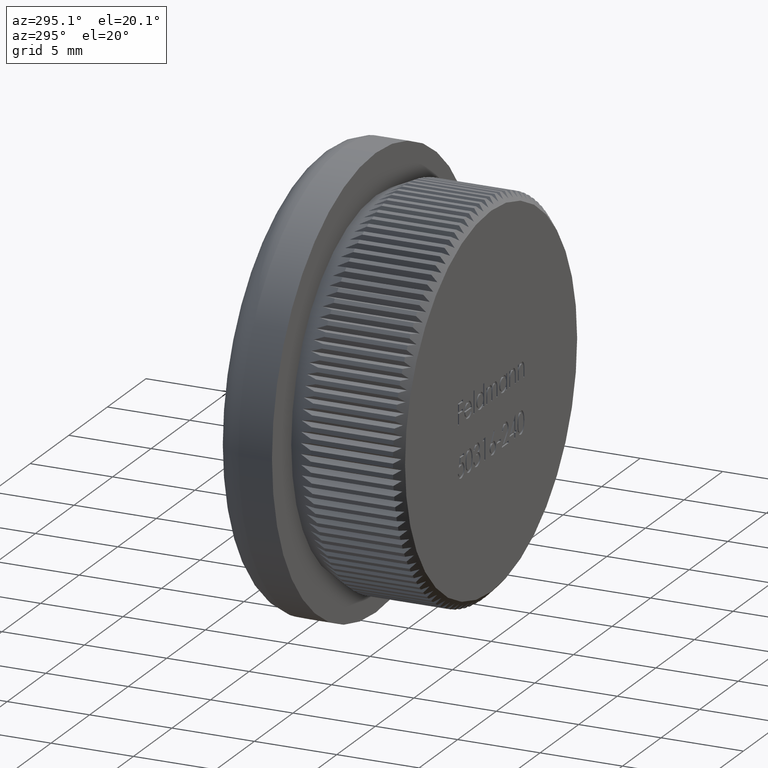
[diagram: clean part render]
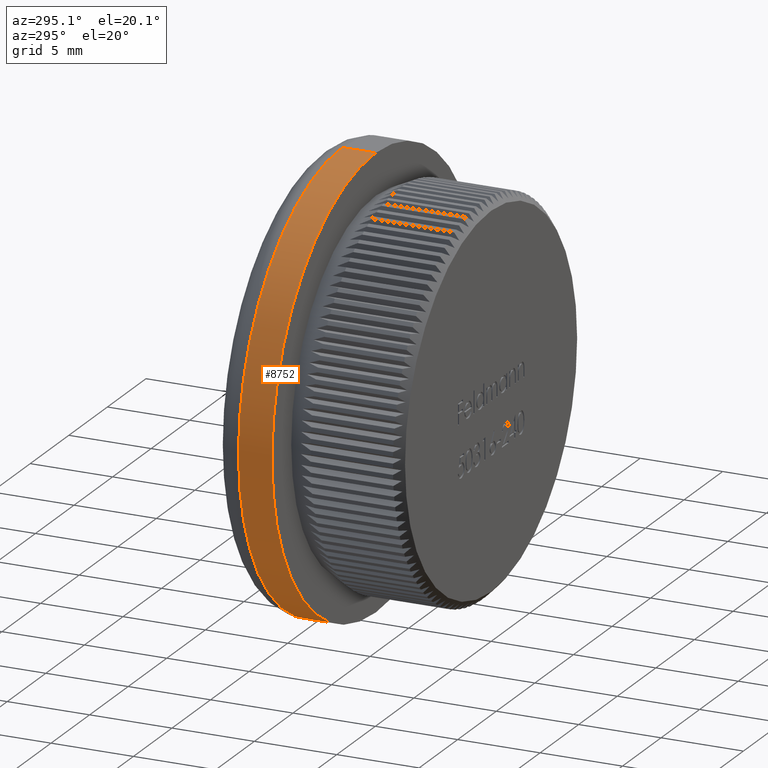
[diagram: same view with one face highlighted and labeled with its STEP entity id]
A machine part, auxiliary view. The second image highlights one B-rep face of the part: STEP entity #8752.
In plain terms, the highlighted cylindrical surface (partial cylindrical patch) has radius 13.45 mm, axis along (-0, -1, -0).
Its self-contained STEP definition (entity closure, byte-faithful):
#712 = VERTEX_POINT ( 'NONE', #13868 ) ;
#1620 = FACE_OUTER_BOUND ( 'NONE', #16242, .T. ) ;
#2226 = CARTESIAN_POINT ( 'NONE',  ( 0.0000000000000000000, 0.0000000000000000000, -13.44999999999999900 ) ) ;
#2604 = EDGE_CURVE ( 'NONE', #712, #7014, #24415, .T. ) ;
#4419 = ORIENTED_EDGE ( 'NONE', *, *, #19281, .F. ) ;
#4815 = VECTOR ( 'NONE', #9831, 1000.000000000000000 ) ;
#5510 = ORIENTED_EDGE ( 'NONE', *, *, #11834, .T. ) ;
#5935 = CIRCLE ( 'NONE', #9913, 13.44999999999999900 ) ;
#6197 = DIRECTION ( 'NONE',  ( 0.0000000000000000000, 0.0000000000000000000, -1.000000000000000000 ) ) ;
#7014 = VERTEX_POINT ( 'NONE', #15273 ) ;
#7886 = AXIS2_PLACEMENT_3D ( 'NONE', #17470, #17642, #6197 ) ;
#7967 = ORIENTED_EDGE ( 'NONE', *, *, #2604, .F. ) ;
#8752 = ADVANCED_FACE ( 'NONE', ( #1620 ), #11071, .T. ) ;
#9831 = DIRECTION ( 'NONE',  ( -0.0000000000000000000, -1.000000000000000000, -0.0000000000000000000 ) ) ;
#9913 = AXIS2_PLACEMENT_3D ( 'NONE', #21210, #19326, #19236 ) ;
#11071 = CYLINDRICAL_SURFACE ( 'NONE', #7886, 13.44999999999999900 ) ;
#11834 = EDGE_CURVE ( 'NONE', #18054, #7014, #18084, .T. ) ;
#11970 = CARTESIAN_POINT ( 'NONE',  ( 1.647149944853190000E-015, 9.030716351575401600, 13.44999999999999900 ) ) ;
#13868 = CARTESIAN_POINT ( 'NONE',  ( 1.647149944853190000E-015, 7.000000000000000000, 13.44999999999999900 ) ) ;
#14442 = CARTESIAN_POINT ( 'NONE',  ( 0.0000000000000000000, 7.000000000000000000, 0.0000000000000000000 ) ) ;
#14537 = AXIS2_PLACEMENT_3D ( 'NONE', #14442, #16598, #18250 ) ;
#15273 = CARTESIAN_POINT ( 'NONE',  ( 0.0000000000000000000, 7.000000000000000000, -13.44999999999999900 ) ) ;
#15465 = ORIENTED_EDGE ( 'NONE', *, *, #23807, .T. ) ;
#16242 = EDGE_LOOP ( 'NONE', ( #4419, #15465, #5510, #7967 ) ) ;
#16598 = DIRECTION ( 'NONE',  ( -0.0000000000000000000, -1.000000000000000000, -0.0000000000000000000 ) ) ;
#16953 = LINE ( 'NONE', #21888, #19300 ) ;
#17470 = CARTESIAN_POINT ( 'NONE',  ( 0.0000000000000000000, 0.0000000000000000000, 0.0000000000000000000 ) ) ;
#17642 = DIRECTION ( 'NONE',  ( -0.0000000000000000000, -1.000000000000000000, -0.0000000000000000000 ) ) ;
#18054 = VERTEX_POINT ( 'NONE', #24142 ) ;
#18084 = LINE ( 'NONE', #2226, #4815 ) ;
#18250 = DIRECTION ( 'NONE',  ( 0.0000000000000000000, 0.0000000000000000000, -1.000000000000000000 ) ) ;
#19236 = DIRECTION ( 'NONE',  ( 0.0000000000000000000, 0.0000000000000000000, -1.000000000000000000 ) ) ;
#19281 = EDGE_CURVE ( 'NONE', #22790, #712, #16953, .T. ) ;
#19300 = VECTOR ( 'NONE', #20496, 1000.000000000000000 ) ;
#19326 = DIRECTION ( 'NONE',  ( -0.0000000000000000000, -1.000000000000000000, -0.0000000000000000000 ) ) ;
#20496 = DIRECTION ( 'NONE',  ( -0.0000000000000000000, -1.000000000000000000, -0.0000000000000000000 ) ) ;
#21210 = CARTESIAN_POINT ( 'NONE',  ( 0.0000000000000000000, 9.030716351575401600, 0.0000000000000000000 ) ) ;
#21888 = CARTESIAN_POINT ( 'NONE',  ( 1.647149944853190000E-015, 0.0000000000000000000, 13.44999999999999900 ) ) ;
#22790 = VERTEX_POINT ( 'NONE', #11970 ) ;
#23807 = EDGE_CURVE ( 'NONE', #22790, #18054, #5935, .T. ) ;
#24142 = CARTESIAN_POINT ( 'NONE',  ( 0.0000000000000000000, 9.030716351575401600, -13.44999999999999900 ) ) ;
#24415 = CIRCLE ( 'NONE', #14537, 13.44999999999999900 ) ;